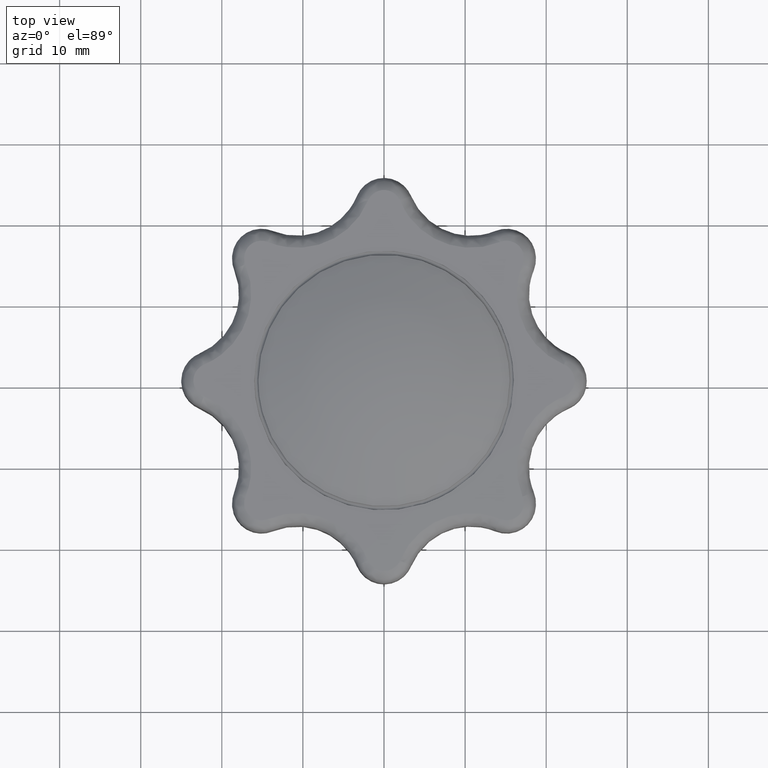
[diagram: clean part render]
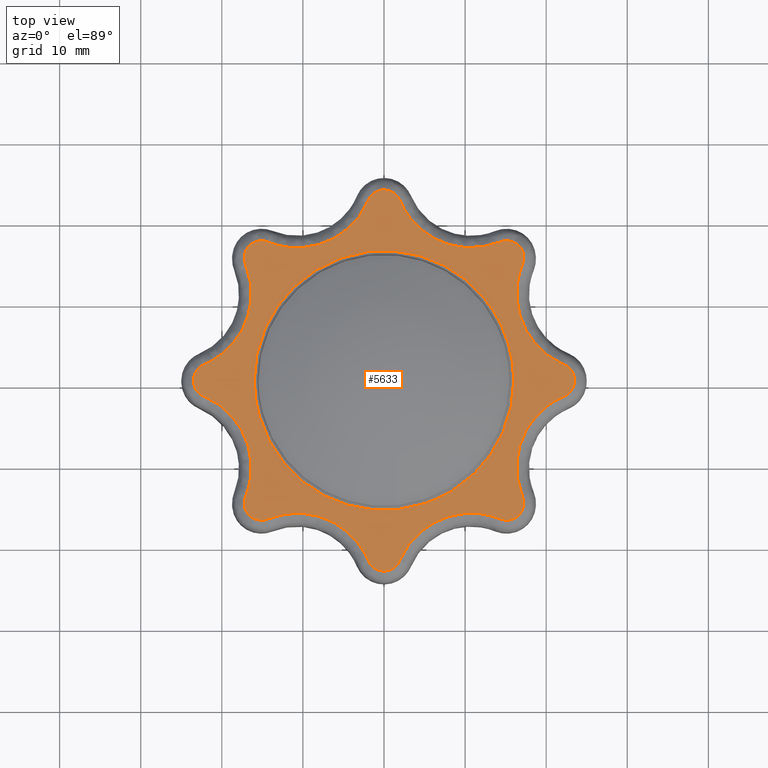
[diagram: same view with one face highlighted and labeled with its STEP entity id]
A machine part, top view. The second image highlights one B-rep face of the part: STEP entity #5633.
In plain terms, the highlighted face is a freeform B-spline surface patch.
Its self-contained STEP definition (entity closure, byte-faithful):
#1126=CARTESIAN_POINT('',(14.477232839454730,6.812468665042097,12.999999491910760));
#1127=VERTEX_POINT('',#1126);
#1145=CARTESIAN_POINT('',(-16.0,0.0,13.0));
#1146=VERTEX_POINT('',#1145);
#1147=CARTESIAN_POINT('',(-16.0,0.0,13.0));
#1148=CARTESIAN_POINT('',(-15.999999999999998,15.999999999999998,13.000000000000002));
#1149=CARTESIAN_POINT('',(0.0,16.0,13.0));
#1150=CARTESIAN_POINT('',(10.153908760704256,16.000000000000007,13.000000000000005));
#1151=CARTESIAN_POINT('',(14.477232839454729,6.812468665042097,12.999999491910756));
#1159=(BOUNDED_CURVE()B_SPLINE_CURVE(2,(#1147,#1148,#1149,#1150,#1151),.UNSPECIFIED.,.F.,.U.)B_SPLINE_CURVE_WITH_KNOTS((3,2,3),(0.0,0.250000000000000,0.427668464636446),.UNSPECIFIED.)CURVE()GEOMETRIC_REPRESENTATION_ITEM()RATIONAL_B_SPLINE_CURVE((1.0,0.707106781186548,1.0,0.791848446043950,0.879552628112393))REPRESENTATION_ITEM(''));
#1160=EDGE_CURVE('',#1146,#1127,#1159,.T.);
#1162=CARTESIAN_POINT('',(5.095301881247966,-15.167000321056170,12.999999491910771));
#1163=VERTEX_POINT('',#1162);
#1164=CARTESIAN_POINT('',(5.095301881247966,-15.167000321056166,12.999999491910771));
#1165=CARTESIAN_POINT('',(2.615741946936867,-16.000000000000004,13.000000000000004));
#1166=CARTESIAN_POINT('',(0.0,-16.0,13.0));
#1167=CARTESIAN_POINT('',(-15.999999999999998,-15.999999999999998,13.000000000000002));
#1168=CARTESIAN_POINT('',(-16.0,0.0,13.0));
#1176=(BOUNDED_CURVE()B_SPLINE_CURVE(2,(#1164,#1165,#1166,#1167,#1168),.UNSPECIFIED.,.F.,.U.)B_SPLINE_CURVE_WITH_KNOTS((3,2,3),(0.695865557710856,0.750000000000000,1.0),.UNSPECIFIED.)CURVE()GEOMETRIC_REPRESENTATION_ITEM()RATIONAL_B_SPLINE_CURVE((0.900621820758423,0.936577555797047,1.0,0.707106781186548,1.0))REPRESENTATION_ITEM(''));
#1177=EDGE_CURVE('',#1163,#1146,#1176,.T.);
#1258=CARTESIAN_POINT('',(16.0,0.0,13.0));
#1259=VERTEX_POINT('',#1258);
#1260=CARTESIAN_POINT('',(16.0,0.0,13.0));
#1261=CARTESIAN_POINT('',(16.000000000000007,-11.503604286062213,12.999999999999995));
#1262=CARTESIAN_POINT('',(5.095301881247966,-15.167000321056166,12.999999491910769));
#1270=(BOUNDED_CURVE()B_SPLINE_CURVE(2,(#1260,#1261,#1262),.UNSPECIFIED.,.F.,.U.)B_SPLINE_CURVE_WITH_KNOTS((3,3),(0.500000000000000,0.695865557710857),.UNSPECIFIED.)CURVE()GEOMETRIC_REPRESENTATION_ITEM()RATIONAL_B_SPLINE_CURVE((1.0,0.770529225389500,0.900621820758424))REPRESENTATION_ITEM(''));
#1271=EDGE_CURVE('',#1259,#1163,#1270,.T.);
#1273=CARTESIAN_POINT('',(14.477232839454732,6.812468665042097,12.999999491910758));
#1274=CARTESIAN_POINT('',(15.999999999999996,3.576423726355980,13.0));
#1275=CARTESIAN_POINT('',(16.0,0.0,13.0));
#1283=(BOUNDED_CURVE()B_SPLINE_CURVE(2,(#1273,#1274,#1275),.UNSPECIFIED.,.F.,.U.)B_SPLINE_CURVE_WITH_KNOTS((3,3),(0.427668464636445,0.500000000000000),.UNSPECIFIED.)CURVE()GEOMETRIC_REPRESENTATION_ITEM()RATIONAL_B_SPLINE_CURVE((0.879552628112393,0.915258335142598,1.0))REPRESENTATION_ITEM(''));
#1284=EDGE_CURVE('',#1127,#1259,#1283,.T.);
#3373=CARTESIAN_POINT('',(1.951609141293995,-22.201124786773050,13.0));
#3374=VERTEX_POINT('',#3373);
#3405=CARTESIAN_POINT('',(14.318567041463080,-17.078559068611600,13.0));
#3406=VERTEX_POINT('',#3405);
#3422=CARTESIAN_POINT('',(1.951609141293995,-22.201124786773050,13.0));
#3423=CARTESIAN_POINT('',(5.592436627287716,-13.501341666017282,12.999999999999998));
#3424=CARTESIAN_POINT('',(14.318567041463080,-17.078559068611600,13.0));
#3432=(BOUNDED_CURVE()B_SPLINE_CURVE(2,(#3422,#3423,#3424),.UNSPECIFIED.,.F.,.U.)CURVE()GEOMETRIC_REPRESENTATION_ITEM()QUASI_UNIFORM_CURVE()RATIONAL_B_SPLINE_CURVE((1.0,0.709683159720188,1.0))REPRESENTATION_ITEM(''));
#3433=EDGE_CURVE('',#3374,#3406,#3432,.T.);
#3463=CARTESIAN_POINT('',(17.078559107296801,-14.318567135830120,13.0));
#3464=VERTEX_POINT('',#3463);
#3480=CARTESIAN_POINT('',(14.318567041463080,-17.078559068611600,13.0));
#3481=CARTESIAN_POINT('',(15.621378417866550,-17.612638616750850,13.000000000000004));
#3482=CARTESIAN_POINT('',(16.617008505248670,-16.617008577365532,13.0));
#3483=CARTESIAN_POINT('',(17.612638592630788,-15.621378537980217,13.000000000000004));
#3484=CARTESIAN_POINT('',(17.078559107296780,-14.318567135830129,13.0));
#3492=(BOUNDED_CURVE()B_SPLINE_CURVE(2,(#3480,#3481,#3482,#3483,#3484),.UNSPECIFIED.,.F.,.U.)B_SPLINE_CURVE_WITH_KNOTS((3,2,3),(0.0,0.500000000000000,1.0),.UNSPECIFIED.)CURVE()GEOMETRIC_REPRESENTATION_ITEM()RATIONAL_B_SPLINE_CURVE((1.0,0.832482120904109,1.0,0.832482120904109,1.0))REPRESENTATION_ITEM(''));
#3493=EDGE_CURVE('',#3406,#3464,#3492,.T.);
#3537=CARTESIAN_POINT('',(-1.951609347359725,-22.201125342004651,13.0));
#3538=VERTEX_POINT('',#3537);
#3570=CARTESIAN_POINT('',(-1.951609347359725,-22.201125342004651,13.0));
#3571=CARTESIAN_POINT('',(-1.408033320655600,-23.500003143968666,13.000000000000002));
#3572=CARTESIAN_POINT('',(0.000000216317919,-23.500002999999989,13.0));
#3573=CARTESIAN_POINT('',(1.408033753291437,-23.500002856031305,13.000000000000002));
#3574=CARTESIAN_POINT('',(1.951609141294006,-22.201124786773050,13.0));
#3582=(BOUNDED_CURVE()B_SPLINE_CURVE(2,(#3570,#3571,#3572,#3573,#3574),.UNSPECIFIED.,.F.,.U.)B_SPLINE_CURVE_WITH_KNOTS((3,2,3),(0.0,0.500000000000000,1.0),.UNSPECIFIED.)CURVE()GEOMETRIC_REPRESENTATION_ITEM()RATIONAL_B_SPLINE_CURVE((1.0,0.832482121225374,1.0,0.832482121225374,1.0))REPRESENTATION_ITEM(''));
#3583=EDGE_CURVE('',#3538,#3374,#3582,.T.);
#3607=CARTESIAN_POINT('',(22.201124341753800,-1.951606765961010,13.0));
#3608=VERTEX_POINT('',#3607);
#3624=CARTESIAN_POINT('',(17.078559107296801,-14.318567135830120,13.0));
#3625=CARTESIAN_POINT('',(13.501338827572640,-5.592435731179914,13.000000000000002));
#3626=CARTESIAN_POINT('',(22.201124341753800,-1.951606765961010,13.0));
#3634=(BOUNDED_CURVE()B_SPLINE_CURVE(2,(#3624,#3625,#3626),.UNSPECIFIED.,.F.,.U.)CURVE()GEOMETRIC_REPRESENTATION_ITEM()QUASI_UNIFORM_CURVE()RATIONAL_B_SPLINE_CURVE((1.0,0.709683077175381,1.0))REPRESENTATION_ITEM(''));
#3635=EDGE_CURVE('',#3464,#3608,#3634,.T.);
#3671=CARTESIAN_POINT('',(-14.318569704202980,-17.078560160183400,13.0));
#3672=VERTEX_POINT('',#3671);
#3702=CARTESIAN_POINT('',(-14.318569704202980,-17.078560160183400,13.0));
#3703=CARTESIAN_POINT('',(-5.592437519357513,-13.501338945711444,13.0));
#3704=CARTESIAN_POINT('',(-1.951609347359725,-22.201125342004651,13.0));
#3712=(BOUNDED_CURVE()B_SPLINE_CURVE(2,(#3702,#3703,#3704),.UNSPECIFIED.,.F.,.U.)CURVE()GEOMETRIC_REPRESENTATION_ITEM()QUASI_UNIFORM_CURVE()RATIONAL_B_SPLINE_CURVE((1.0,0.709683036969196,1.0))REPRESENTATION_ITEM(''));
#3713=EDGE_CURVE('',#3672,#3538,#3712,.T.);
#3743=CARTESIAN_POINT('',(22.201124633820651,1.951609205303970,13.0));
#3744=VERTEX_POINT('',#3743);
#3760=CARTESIAN_POINT('',(22.201124341753800,-1.951606765961010,13.0));
#3761=CARTESIAN_POINT('',(23.500002438520948,-1.408031357764130,13.000000000000005));
#3762=CARTESIAN_POINT('',(23.500002543880139,0.000001426047039,13.0));
#3763=CARTESIAN_POINT('',(23.500002649239345,1.408034209858208,13.000000000000005));
#3764=CARTESIAN_POINT('',(22.201124633820651,1.951609205303970,13.0));
#3772=(BOUNDED_CURVE()B_SPLINE_CURVE(2,(#3760,#3761,#3762,#3763,#3764),.UNSPECIFIED.,.F.,.U.)B_SPLINE_CURVE_WITH_KNOTS((3,2,3),(0.0,0.500000000000000,1.0),.UNSPECIFIED.)CURVE()GEOMETRIC_REPRESENTATION_ITEM()RATIONAL_B_SPLINE_CURVE((1.0,0.832482115204783,1.0,0.832482115204783,1.0))REPRESENTATION_ITEM(''));
#3773=EDGE_CURVE('',#3608,#3744,#3772,.T.);
#3817=CARTESIAN_POINT('',(-17.078561130679049,-14.318566312790880,13.0));
#3818=VERTEX_POINT('',#3817);
#3850=CARTESIAN_POINT('',(-17.078561130679049,-14.318566312790880,13.0));
#3851=CARTESIAN_POINT('',(-17.612639936293203,-15.621376869296068,13.000000000000005));
#3852=CARTESIAN_POINT('',(-16.617010531160481,-16.617007147741511,13.0));
#3853=CARTESIAN_POINT('',(-15.621381126027758,-17.612637426186950,13.000000000000005));
#3854=CARTESIAN_POINT('',(-14.318569704202980,-17.078560160183400,13.0));
#3862=(BOUNDED_CURVE()B_SPLINE_CURVE(2,(#3850,#3851,#3852,#3853,#3854),.UNSPECIFIED.,.F.,.U.)B_SPLINE_CURVE_WITH_KNOTS((3,2,3),(0.0,0.500000000000000,1.0),.UNSPECIFIED.)CURVE()GEOMETRIC_REPRESENTATION_ITEM()RATIONAL_B_SPLINE_CURVE((1.0,0.832482309707778,1.0,0.832482309707778,1.0))REPRESENTATION_ITEM(''));
#3863=EDGE_CURVE('',#3818,#3672,#3862,.T.);
#3887=CARTESIAN_POINT('',(17.078561051320101,14.318566679845340,13.0));
#3888=VERTEX_POINT('',#3887);
#3902=CARTESIAN_POINT('',(22.201124633820651,1.951609205303970,13.0));
#3903=CARTESIAN_POINT('',(13.501342336391772,5.592436752187356,12.999999999999998));
#3904=CARTESIAN_POINT('',(17.078561051320101,14.318566679845331,13.0));
#3912=(BOUNDED_CURVE()B_SPLINE_CURVE(2,(#3902,#3903,#3904),.UNSPECIFIED.,.F.,.U.)CURVE()GEOMETRIC_REPRESENTATION_ITEM()QUASI_UNIFORM_CURVE()RATIONAL_B_SPLINE_CURVE((1.0,0.709683150388716,1.0))REPRESENTATION_ITEM(''));
#3913=EDGE_CURVE('',#3744,#3888,#3912,.T.);
#3949=CARTESIAN_POINT('',(-22.201124102132798,-1.951607753825630,13.0));
#3950=VERTEX_POINT('',#3949);
#3980=CARTESIAN_POINT('',(-22.201124102132798,-1.951607753825630,13.0));
#3981=CARTESIAN_POINT('',(-13.501339025419256,-5.592435550792310,13.000000000000002));
#3982=CARTESIAN_POINT('',(-17.078561130679049,-14.318566312790880,13.0));
#3990=(BOUNDED_CURVE()B_SPLINE_CURVE(2,(#3980,#3981,#3982),.UNSPECIFIED.,.F.,.U.)CURVE()GEOMETRIC_REPRESENTATION_ITEM()QUASI_UNIFORM_CURVE()RATIONAL_B_SPLINE_CURVE((1.0,0.709683051021894,1.0))REPRESENTATION_ITEM(''));
#3991=EDGE_CURVE('',#3950,#3818,#3990,.T.);
#4021=CARTESIAN_POINT('',(14.318568958147640,17.078559854343599,13.0));
#4022=VERTEX_POINT('',#4021);
#4036=CARTESIAN_POINT('',(17.078561051320101,14.318566679845340,13.0));
#4037=CARTESIAN_POINT('',(17.612639761706124,15.621377469072026,12.999999999999996));
#4038=CARTESIAN_POINT('',(16.617010038272291,16.617007582579479,13.0));
#4039=CARTESIAN_POINT('',(15.621380314838460,17.612637696086932,12.999999999999996));
#4040=CARTESIAN_POINT('',(14.318568958147640,17.078559854343599,13.0));
#4048=(BOUNDED_CURVE()B_SPLINE_CURVE(2,(#4036,#4037,#4038,#4039,#4040),.UNSPECIFIED.,.F.,.U.)B_SPLINE_CURVE_WITH_KNOTS((3,2,3),(0.0,0.500000000000000,1.0),.UNSPECIFIED.)CURVE()GEOMETRIC_REPRESENTATION_ITEM()RATIONAL_B_SPLINE_CURVE((1.0,0.832482277182300,1.0,0.832482277182300,1.0))REPRESENTATION_ITEM(''));
#4049=EDGE_CURVE('',#3888,#4022,#4048,.T.);
#4093=CARTESIAN_POINT('',(-22.201121482558101,1.951610544028000,13.0));
#4094=VERTEX_POINT('',#4093);
#4126=CARTESIAN_POINT('',(-22.201121482558101,1.951610544028000,13.0));
#4127=CARTESIAN_POINT('',(-23.499998356646337,1.408035347923196,12.999999999999996));
#4128=CARTESIAN_POINT('',(-23.499999301622260,0.000002467561726,13.0));
#4129=CARTESIAN_POINT('',(-23.500000246598187,-1.408030412799746,12.999999999999996));
#4130=CARTESIAN_POINT('',(-22.201124102132798,-1.951607753825630,13.0));
#4138=(BOUNDED_CURVE()B_SPLINE_CURVE(2,(#4126,#4127,#4128,#4129,#4130),.UNSPECIFIED.,.F.,.U.)B_SPLINE_CURVE_WITH_KNOTS((3,2,3),(0.0,0.500000000000000,1.0),.UNSPECIFIED.)CURVE()GEOMETRIC_REPRESENTATION_ITEM()RATIONAL_B_SPLINE_CURVE((1.0,0.832482334771317,1.0,0.832482334771317,1.0))REPRESENTATION_ITEM(''));
#4139=EDGE_CURVE('',#4094,#3950,#4138,.T.);
#4163=CARTESIAN_POINT('',(1.951609660720135,22.201121593227700,13.0));
#4164=VERTEX_POINT('',#4163);
#4178=CARTESIAN_POINT('',(14.318568958147640,17.078559854343599,13.0));
#4179=CARTESIAN_POINT('',(5.592438018109788,13.501336859856377,13.0));
#4180=CARTESIAN_POINT('',(1.951609660720128,22.201121593227700,13.0));
#4188=(BOUNDED_CURVE()B_SPLINE_CURVE(2,(#4178,#4179,#4180),.UNSPECIFIED.,.F.,.U.)CURVE()GEOMETRIC_REPRESENTATION_ITEM()QUASI_UNIFORM_CURVE()RATIONAL_B_SPLINE_CURVE((1.0,0.709683054770868,1.0))REPRESENTATION_ITEM(''));
#4189=EDGE_CURVE('',#4022,#4164,#4188,.T.);
#4225=CARTESIAN_POINT('',(-17.078560079200798,14.318569506656599,13.0));
#4226=VERTEX_POINT('',#4225);
#4256=CARTESIAN_POINT('',(-17.078560079200798,14.318569506656599,13.0));
#4257=CARTESIAN_POINT('',(-13.501339389169930,5.592440254742870,12.999999999999998));
#4258=CARTESIAN_POINT('',(-22.201121482558101,1.951610544028000,13.0));
#4266=(BOUNDED_CURVE()B_SPLINE_CURVE(2,(#4256,#4257,#4258),.UNSPECIFIED.,.F.,.U.)CURVE()GEOMETRIC_REPRESENTATION_ITEM()QUASI_UNIFORM_CURVE()RATIONAL_B_SPLINE_CURVE((1.0,0.709683145759946,1.0))REPRESENTATION_ITEM(''));
#4267=EDGE_CURVE('',#4226,#4094,#4266,.T.);
#4297=CARTESIAN_POINT('',(-1.951608977199225,22.201121178878850,13.0));
#4298=VERTEX_POINT('',#4297);
#4314=CARTESIAN_POINT('',(1.951609660720135,22.201121593227700,13.0));
#4315=CARTESIAN_POINT('',(1.408033284503722,23.499999039384029,13.000000000000002));
#4316=CARTESIAN_POINT('',(-0.000000059175865,23.499998999999999,13.0));
#4317=CARTESIAN_POINT('',(-1.408033402855452,23.499998960615972,13.000000000000002));
#4318=CARTESIAN_POINT('',(-1.951608977199221,22.201121178878850,13.0));
#4326=(BOUNDED_CURVE()B_SPLINE_CURVE(2,(#4314,#4315,#4316,#4317,#4318),.UNSPECIFIED.,.F.,.U.)B_SPLINE_CURVE_WITH_KNOTS((3,2,3),(0.0,0.500000000000000,1.0),.UNSPECIFIED.)CURVE()GEOMETRIC_REPRESENTATION_ITEM()RATIONAL_B_SPLINE_CURVE((1.0,0.832482156307108,1.0,0.832482156307108,1.0))REPRESENTATION_ITEM(''));
#4327=EDGE_CURVE('',#4164,#4298,#4326,.T.);
#4371=CARTESIAN_POINT('',(-14.318567596073139,17.078558426921649,13.0));
#4372=VERTEX_POINT('',#4371);
#4404=CARTESIAN_POINT('',(-14.318567596073139,17.078558426921649,13.0));
#4405=CARTESIAN_POINT('',(-15.621377790288351,17.612638165438117,13.0));
#4406=CARTESIAN_POINT('',(-16.617007694712751,16.617009387900989,13.0));
#4407=CARTESIAN_POINT('',(-17.612637599137145,15.621380610363845,13.0));
#4408=CARTESIAN_POINT('',(-17.078560079200781,14.318569506656610,13.0));
#4416=(BOUNDED_CURVE()B_SPLINE_CURVE(2,(#4404,#4405,#4406,#4407,#4408),.UNSPECIFIED.,.F.,.U.)B_SPLINE_CURVE_WITH_KNOTS((3,2,3),(0.0,0.500000000000000,1.0),.UNSPECIFIED.)CURVE()GEOMETRIC_REPRESENTATION_ITEM()RATIONAL_B_SPLINE_CURVE((1.0,0.832482306324386,1.0,0.832482306324386,1.0))REPRESENTATION_ITEM(''));
#4417=EDGE_CURVE('',#4372,#4226,#4416,.T.);
#4454=CARTESIAN_POINT('',(-1.951608977199225,22.201121178878850,13.0));
#4455=CARTESIAN_POINT('',(-5.592437436304634,13.501338554422455,13.0));
#4456=CARTESIAN_POINT('',(-14.318567596073150,17.078558426921621,13.0));
#4464=(BOUNDED_CURVE()B_SPLINE_CURVE(2,(#4454,#4455,#4456),.UNSPECIFIED.,.F.,.U.)CURVE()GEOMETRIC_REPRESENTATION_ITEM()QUASI_UNIFORM_CURVE()RATIONAL_B_SPLINE_CURVE((1.0,0.709683125967251,1.0))REPRESENTATION_ITEM(''));
#4465=EDGE_CURVE('',#4298,#4372,#4464,.T.);
#5604=CARTESIAN_POINT('',(25.847652103765441,-25.847653723292630,13.0));
#5605=CARTESIAN_POINT('',(-25.847650542358739,-25.847653723292630,13.0));
#5606=CARTESIAN_POINT('',(25.847652103765441,25.847646781803281,13.0));
#5607=CARTESIAN_POINT('',(-25.847650542358739,25.847646781803281,13.0));
#5608=B_SPLINE_SURFACE_WITH_KNOTS('',1,1,((#5604,#5606),(#5605,#5607)),.UNSPECIFIED.,.F.,.F.,.U.,(2,2),(2,2),(0.0,51.695302646124183),(0.0,51.695300505095908),.UNSPECIFIED.);
#5609=ORIENTED_EDGE('',*,*,#3583,.T.);
#5610=ORIENTED_EDGE('',*,*,#3433,.T.);
#5611=ORIENTED_EDGE('',*,*,#3493,.T.);
#5612=ORIENTED_EDGE('',*,*,#3635,.T.);
#5613=ORIENTED_EDGE('',*,*,#3773,.T.);
#5614=ORIENTED_EDGE('',*,*,#3913,.T.);
#5615=ORIENTED_EDGE('',*,*,#4049,.T.);
#5616=ORIENTED_EDGE('',*,*,#4189,.T.);
#5617=ORIENTED_EDGE('',*,*,#4327,.T.);
#5618=ORIENTED_EDGE('',*,*,#4465,.T.);
#5619=ORIENTED_EDGE('',*,*,#4417,.T.);
#5620=ORIENTED_EDGE('',*,*,#4267,.T.);
#5621=ORIENTED_EDGE('',*,*,#4139,.T.);
#5622=ORIENTED_EDGE('',*,*,#3991,.T.);
#5623=ORIENTED_EDGE('',*,*,#3863,.T.);
#5624=ORIENTED_EDGE('',*,*,#3713,.T.);
#5625=EDGE_LOOP('',(#5609,#5610,#5611,#5612,#5613,#5614,#5615,#5616,#5617,#5618,#5619,#5620,#5621,#5622,#5623,#5624));
#5626=FACE_OUTER_BOUND('',#5625,.T.);
#5627=ORIENTED_EDGE('',*,*,#1160,.T.);
#5628=ORIENTED_EDGE('',*,*,#1284,.T.);
#5629=ORIENTED_EDGE('',*,*,#1271,.T.);
#5630=ORIENTED_EDGE('',*,*,#1177,.T.);
#5631=EDGE_LOOP('',(#5627,#5628,#5629,#5630));
#5632=FACE_BOUND('',#5631,.T.);
#5633=ADVANCED_FACE('',(#5626,#5632),#5608,.F.);